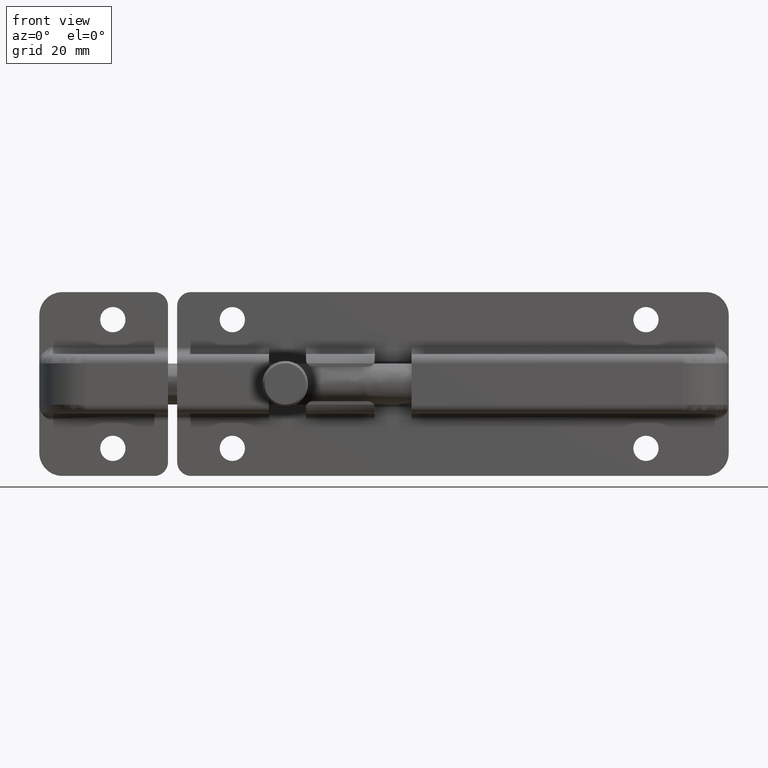
[diagram: clean part render]
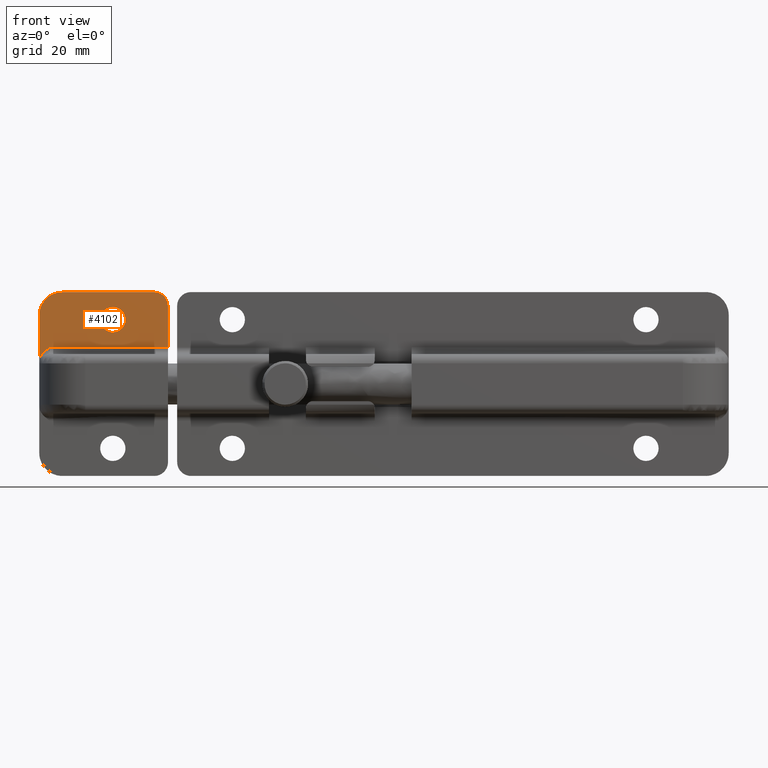
[diagram: same view with one face highlighted and labeled with its STEP entity id]
A machine part, front view. The second image highlights one B-rep face of the part: STEP entity #4102.
In plain terms, the highlighted face is a freeform B-spline surface patch.
Its self-contained STEP definition (entity closure, byte-faithful):
#2371=CARTESIAN_POINT('',(-47.230776197498507,-1.499999999999834,14.324594145319301));
#2372=VERTEX_POINT('',#2371);
#2373=CARTESIAN_POINT('',(-44.500000000000000,-1.499999999999834,11.250000000000000));
#2374=VERTEX_POINT('',#2373);
#2375=CARTESIAN_POINT('',(-47.230776197498521,-1.499999999999834,14.324594145319303));
#2376=CARTESIAN_POINT('',(-47.250000000000000,-1.499999999999834,14.162866329056111));
#2377=CARTESIAN_POINT('',(-47.250000000000000,-1.499999999999834,14.0));
#2378=CARTESIAN_POINT('',(-47.250000000000000,-1.499999999999834,11.249999999999998));
#2379=CARTESIAN_POINT('',(-44.500000000000000,-1.499999999999834,11.250000000000000));
#2387=(BOUNDED_CURVE()B_SPLINE_CURVE(2,(#2375,#2376,#2377,#2378,#2379),.UNSPECIFIED.,.F.,.U.)B_SPLINE_CURVE_WITH_KNOTS((3,2,3),(0.229562473514008,0.250000000000000,0.500000000000000),.UNSPECIFIED.)CURVE()GEOMETRIC_REPRESENTATION_ITEM()RATIONAL_B_SPLINE_CURVE((0.956026754184679,0.976055948331731,1.0,0.707106781186548,1.0))REPRESENTATION_ITEM(''));
#2388=EDGE_CURVE('',#2372,#2374,#2387,.T.);
#2390=CARTESIAN_POINT('',(-41.755129304350703,-1.499999999999834,13.832116516101850));
#2391=VERTEX_POINT('',#2390);
#2392=CARTESIAN_POINT('',(-44.500000000000000,-1.499999999999834,11.250000000000000));
#2393=CARTESIAN_POINT('',(-41.913058316344141,-1.499999999999834,11.249999999999996));
#2394=CARTESIAN_POINT('',(-41.755129304350703,-1.499999999999834,13.832116516101848));
#2402=(BOUNDED_CURVE()B_SPLINE_CURVE(2,(#2392,#2393,#2394),.UNSPECIFIED.,.F.,.U.)B_SPLINE_CURVE_WITH_KNOTS((3,3),(0.500000000000000,0.739332962219678),.UNSPECIFIED.)CURVE()GEOMETRIC_REPRESENTATION_ITEM()RATIONAL_B_SPLINE_CURVE((1.0,0.719603993309280,0.976072041625430))REPRESENTATION_ITEM(''));
#2403=EDGE_CURVE('',#2374,#2391,#2402,.T.);
#2470=CARTESIAN_POINT('',(-44.500000000000000,-1.499999999999834,16.750000000000000));
#2471=VERTEX_POINT('',#2470);
#2472=CARTESIAN_POINT('',(-44.500000000000000,-1.499999999999834,16.750000000000000));
#2473=CARTESIAN_POINT('',(-46.942479946342438,-1.499999999999834,16.750000000000004));
#2474=CARTESIAN_POINT('',(-47.230776197498514,-1.499999999999834,14.324594145319306));
#2482=(BOUNDED_CURVE()B_SPLINE_CURVE(2,(#2472,#2473,#2474),.UNSPECIFIED.,.F.,.U.)B_SPLINE_CURVE_WITH_KNOTS((3,3),(0.0,0.229562473514008),.UNSPECIFIED.)CURVE()GEOMETRIC_REPRESENTATION_ITEM()RATIONAL_B_SPLINE_CURVE((1.0,0.731050832854817,0.956026754184679))REPRESENTATION_ITEM(''));
#2483=EDGE_CURVE('',#2471,#2372,#2482,.T.);
#2517=CARTESIAN_POINT('',(-41.755129304350703,-1.499999999999834,13.832116516101845));
#2518=CARTESIAN_POINT('',(-41.749999999999993,-1.499999999999834,13.915979900751083));
#2519=CARTESIAN_POINT('',(-41.749999999999993,-1.499999999999834,14.0));
#2520=CARTESIAN_POINT('',(-41.750000000000000,-1.499999999999834,16.750000000000000));
#2521=CARTESIAN_POINT('',(-44.500000000000000,-1.499999999999834,16.750000000000000));
#2529=(BOUNDED_CURVE()B_SPLINE_CURVE(2,(#2517,#2518,#2519,#2520,#2521),.UNSPECIFIED.,.F.,.U.)B_SPLINE_CURVE_WITH_KNOTS((3,2,3),(0.739332962219678,0.750000000000000,1.0),.UNSPECIFIED.)CURVE()GEOMETRIC_REPRESENTATION_ITEM()RATIONAL_B_SPLINE_CURVE((0.976072041625429,0.987502787877267,1.0,0.707106781186548,1.0))REPRESENTATION_ITEM(''));
#2530=EDGE_CURVE('',#2391,#2471,#2529,.T.);
#2846=CARTESIAN_POINT('',(-58.245966692414797,-1.500000000000000,8.0));
#2847=VERTEX_POINT('',#2846);
#2877=CARTESIAN_POINT('',(-60.500000000000000,-1.500000000000000,4.837722339831670));
#2878=VERTEX_POINT('',#2877);
#2879=CARTESIAN_POINT('',(-60.500000000000000,-1.500000000000000,4.837722339831670));
#2880=CARTESIAN_POINT('',(-60.500000000000007,-1.500000000000000,5.008541799080361));
#2881=CARTESIAN_POINT('',(-60.481653918791913,-1.500000000000000,5.176119257054327));
#2882=CARTESIAN_POINT('',(-60.429588147353513,-1.500000000000000,5.423147718237440));
#2883=CARTESIAN_POINT('',(-60.408105776820548,-1.500000000000000,5.504761221743410));
#2884=CARTESIAN_POINT('',(-60.357046269094091,-1.500000000000000,5.666557773742398));
#2885=CARTESIAN_POINT('',(-60.327381920327802,-1.500000000000000,5.746828037129762));
#2886=CARTESIAN_POINT('',(-60.228478293669511,-1.500000000000000,5.980930562221844));
#2887=CARTESIAN_POINT('',(-60.148916667679757,-1.500000000000000,6.129721869518381));
#2888=CARTESIAN_POINT('',(-60.011807711160692,-1.500000000000000,6.343420433646116));
#2889=CARTESIAN_POINT('',(-59.962925770425187,-1.500000000000000,6.413329607554360));
#2890=CARTESIAN_POINT('',(-59.860690576839893,-1.500000000000000,6.548783733976032));
#2891=CARTESIAN_POINT('',(-59.807460799767902,-1.500000000000000,6.614220344695560));
#2892=CARTESIAN_POINT('',(-59.642326133498159,-1.500000000000000,6.804625244703298));
#2893=CARTESIAN_POINT('',(-59.524955962554714,-1.500000000000000,6.923666971608345));
#2894=CARTESIAN_POINT('',(-59.280393492719327,-1.500000000000000,7.151099290356963));
#2895=CARTESIAN_POINT('',(-59.153183799632679,-1.500000000000000,7.259471019901217));
#2896=CARTESIAN_POINT('',(-58.894465768067107,-1.500000000000000,7.471553019386023));
#2897=CARTESIAN_POINT('',(-58.763001228910383,-1.500000000000000,7.575310785398541));
#2898=CARTESIAN_POINT('',(-58.567165969465186,-1.500000000000000,7.732423901172386));
#2899=CARTESIAN_POINT('',(-58.502113470120094,-1.500000000000000,7.785039928370155));
#2900=CARTESIAN_POINT('',(-58.405360065074092,-1.500000000000000,7.864858973809400));
#2901=CARTESIAN_POINT('',(-58.373245552531849,-1.500000000000000,7.891613475970409));
#2902=CARTESIAN_POINT('',(-58.309358149205373,-1.500000000000000,7.945492935605508));
#2903=CARTESIAN_POINT('',(-58.277769822776413,-1.500000000000001,7.972485624676730));
#2904=CARTESIAN_POINT('',(-58.245966692414797,-1.500000000000000,8.0));
#2905=B_SPLINE_CURVE_WITH_KNOTS('',3,(#2879,#2880,#2881,#2882,#2883,#2884,#2885,#2886,#2887,#2888,#2889,#2890,#2891,#2892,#2893,#2894,#2895,#2896,#2897,#2898,#2899,#2900,#2901,#2902,#2903,#2904),.UNSPECIFIED.,.F.,.U.,(4,2,2,2,2,2,2,2,2,2,2,2,4),(0.0,0.125000000000000,0.187500000000001,0.250000000000001,0.375000000000001,0.437500000000002,0.500000000000003,0.625000000000000,0.749999999999997,0.874999999999994,0.937499999999995,0.968749999999998,1.0),.UNSPECIFIED.);
#2906=EDGE_CURVE('',#2878,#2847,#2905,.T.);
#3404=CARTESIAN_POINT('',(-32.500000000000000,-1.500000000000000,8.0));
#3405=VERTEX_POINT('',#3404);
#3406=CARTESIAN_POINT('',(-58.245966692414797,-1.500000000000000,8.0));
#3407=CARTESIAN_POINT('',(-32.500000000000000,-1.500000000000000,8.0));
#3408=QUASI_UNIFORM_CURVE('',1,(#3406,#3407),.UNSPECIFIED.,.F.,.U.);
#3409=EDGE_CURVE('',#2847,#3405,#3408,.T.);
#3663=CARTESIAN_POINT('',(-55.500000000000000,-1.500000000000000,20.0));
#3664=VERTEX_POINT('',#3663);
#3665=CARTESIAN_POINT('',(-60.500000000000000,-1.500000000000000,15.0));
#3666=VERTEX_POINT('',#3665);
#3667=CARTESIAN_POINT('',(-55.500000000000000,-1.500000000000000,20.0));
#3668=CARTESIAN_POINT('',(-60.500000000000000,-1.500000000000000,19.999999999999996));
#3669=CARTESIAN_POINT('',(-60.500000000000000,-1.500000000000000,15.0));
#3677=(BOUNDED_CURVE()B_SPLINE_CURVE(2,(#3667,#3668,#3669),.UNSPECIFIED.,.F.,.U.)CURVE()GEOMETRIC_REPRESENTATION_ITEM()QUASI_UNIFORM_CURVE()RATIONAL_B_SPLINE_CURVE((1.0,0.707106781186548,1.0))REPRESENTATION_ITEM(''));
#3678=EDGE_CURVE('',#3664,#3666,#3677,.T.);
#3724=CARTESIAN_POINT('',(-32.500000000000000,-1.500000000000000,17.0));
#3725=VERTEX_POINT('',#3724);
#3726=CARTESIAN_POINT('',(-35.500000000000000,-1.500000000000000,20.0));
#3727=VERTEX_POINT('',#3726);
#3728=CARTESIAN_POINT('',(-32.499999999999993,-1.500000000000000,17.0));
#3729=CARTESIAN_POINT('',(-32.499999999999986,-1.500000000000000,19.999999999999996));
#3730=CARTESIAN_POINT('',(-35.500000000000000,-1.500000000000000,20.0));
#3738=(BOUNDED_CURVE()B_SPLINE_CURVE(2,(#3728,#3729,#3730),.UNSPECIFIED.,.F.,.U.)CURVE()GEOMETRIC_REPRESENTATION_ITEM()QUASI_UNIFORM_CURVE()RATIONAL_B_SPLINE_CURVE((1.0,0.707106781186548,1.0))REPRESENTATION_ITEM(''));
#3739=EDGE_CURVE('',#3725,#3727,#3738,.T.);
#3987=CARTESIAN_POINT('',(-60.500000000000000,-1.500000000000000,4.837722339831670));
#3988=CARTESIAN_POINT('',(-60.500000000000000,-1.500000000000000,15.0));
#3989=QUASI_UNIFORM_CURVE('',1,(#3987,#3988),.UNSPECIFIED.,.F.,.U.);
#3990=EDGE_CURVE('',#2878,#3666,#3989,.T.);
#4047=CARTESIAN_POINT('',(-32.500000000000000,-1.500000000000000,8.0));
#4048=CARTESIAN_POINT('',(-32.500000000000000,-1.500000000000000,17.0));
#4049=QUASI_UNIFORM_CURVE('',1,(#4047,#4048),.UNSPECIFIED.,.F.,.U.);
#4050=EDGE_CURVE('',#3405,#3725,#4049,.T.);
#4067=CARTESIAN_POINT('',(-35.500000000000000,-1.500000000000000,20.0));
#4068=CARTESIAN_POINT('',(-55.500000000000000,-1.500000000000000,20.0));
#4069=QUASI_UNIFORM_CURVE('',1,(#4067,#4068),.UNSPECIFIED.,.F.,.U.);
#4070=EDGE_CURVE('',#3727,#3664,#4069,.T.);
#4082=CARTESIAN_POINT('',(-61.898599945730581,-1.500000000000000,20.757355739737971));
#4083=CARTESIAN_POINT('',(-61.898599945730581,-1.500000000000000,4.080366193409720));
#4084=CARTESIAN_POINT('',(-31.101399303250918,-1.500000000000000,20.757355739737971));
#4085=CARTESIAN_POINT('',(-31.101399303250918,-1.500000000000000,4.080366193409720));
#4086=B_SPLINE_SURFACE_WITH_KNOTS('',1,1,((#4082,#4084),(#4083,#4085)),.UNSPECIFIED.,.F.,.F.,.U.,(2,2),(2,2),(0.0,16.676989546328251),(0.0,30.797200642479670),.UNSPECIFIED.);
#4087=ORIENTED_EDGE('',*,*,#3990,.F.);
#4088=ORIENTED_EDGE('',*,*,#2906,.T.);
#4089=ORIENTED_EDGE('',*,*,#3409,.T.);
#4090=ORIENTED_EDGE('',*,*,#4050,.T.);
#4091=ORIENTED_EDGE('',*,*,#3739,.T.);
#4092=ORIENTED_EDGE('',*,*,#4070,.T.);
#4093=ORIENTED_EDGE('',*,*,#3678,.T.);
#4094=EDGE_LOOP('',(#4087,#4088,#4089,#4090,#4091,#4092,#4093));
#4095=FACE_OUTER_BOUND('',#4094,.T.);
#4096=ORIENTED_EDGE('',*,*,#2403,.F.);
#4097=ORIENTED_EDGE('',*,*,#2388,.F.);
#4098=ORIENTED_EDGE('',*,*,#2483,.F.);
#4099=ORIENTED_EDGE('',*,*,#2530,.F.);
#4100=EDGE_LOOP('',(#4096,#4097,#4098,#4099));
#4101=FACE_BOUND('',#4100,.T.);
#4102=ADVANCED_FACE('',(#4095,#4101),#4086,.T.);